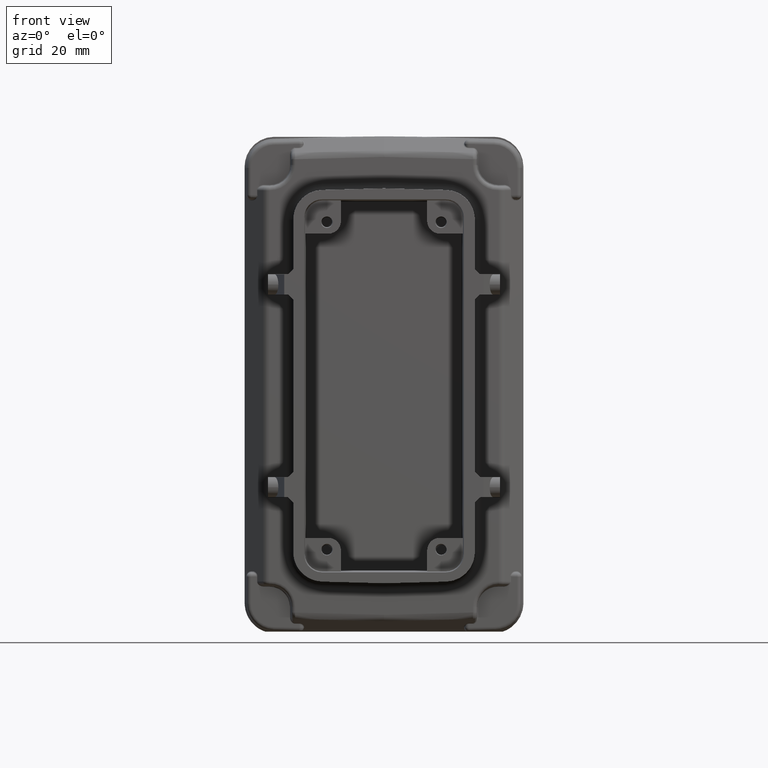
[diagram: clean part render]
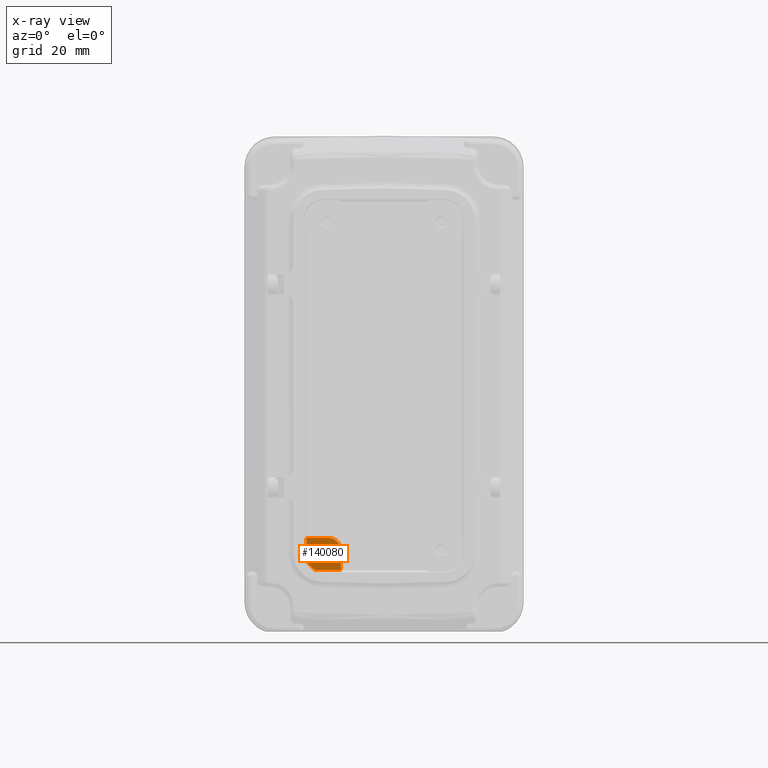
[diagram: x-ray — body ghosted, one internal face saturated and labeled with its STEP entity id]
A machine part, front view, then the same camera in x-ray: the body is ghosted and one INTERNAL B-rep face — a face not visible from any outside direction — is saturated and labeled: STEP entity #140080.
In plain terms, the highlighted planar face has unit normal (0, 1, 0).
Its self-contained STEP definition (entity closure, byte-faithful):
#58070=CARTESIAN_POINT('',(33.4243132424393,44.5366080000222,
-56.2038627075968));
#58080=DIRECTION('',(-0.,-1.,-0.));
#58090=DIRECTION('',(1.,-0.,0.));
#58100=AXIS2_PLACEMENT_3D('',#58070,#58080,#58090);
#58110=CIRCLE('',#58100,2.99999999999999);
#58120=CARTESIAN_POINT('',(36.4243132424393,44.5366080000222,
-56.2038627075968));
#58130=VERTEX_POINT('',#58120);
#58140=CARTESIAN_POINT('',(33.4243132424393,44.5366080000222,
-53.2038627075968));
#58150=VERTEX_POINT('',#58140);
#58160=EDGE_CURVE('',#58130,#58150,#58110,.T.);
#73470=CARTESIAN_POINT('',(0.,44.5366080000222,-60.8221435805747));
#73480=DIRECTION('',(1.,0.,-0.));
#73490=VECTOR('',#73480,1.);
#73500=LINE('',#73470,#73490);
#73510=CARTESIAN_POINT('',(30.6701886749184,44.5366080000222,
-60.8221435805748));
#73520=VERTEX_POINT('',#73510);
#73530=CARTESIAN_POINT('',(36.4243132424393,44.5366080000222,
-60.8221435805748));
#73540=VERTEX_POINT('',#73530);
#73550=EDGE_CURVE('',#73520,#73540,#73500,.T.);
#122320=CARTESIAN_POINT('',(0.,44.5366080000222,-53.2038627075968));
#122330=DIRECTION('',(-1.,-0.,0.));
#122340=VECTOR('',#122330,1.);
#122350=LINE('',#122320,#122340);
#122360=CARTESIAN_POINT('',(28.2554455194673,44.5366080000222,
-53.2038627075968));
#122370=VERTEX_POINT('',#122360);
#122380=EDGE_CURVE('',#58150,#122370,#122350,.T.);
#129440=CARTESIAN_POINT('',(28.5484029886949,44.5366080000222,
-59.1150367993883));
#129450=VERTEX_POINT('',#129440);
#129530=CARTESIAN_POINT('',(29.9629267795106,44.5366080000222,
-60.5292503617614));
#129540=VERTEX_POINT('',#129530);
#129570=CARTESIAN_POINT('',(0.,44.5366080000222,-30.5728949472358));
#129580=DIRECTION('',(-0.707184325538622,-0.,0.707029228329696));
#129590=VECTOR('',#129580,1.);
#129600=LINE('',#129570,#129590);
#129610=EDGE_CURVE('',#129540,#129450,#129600,.T.);
#129970=CARTESIAN_POINT('',(29.9629267795106,44.5366080000222,
-60.5292503617614));
#129980=CARTESIAN_POINT('',(29.9860720665585,44.5366080000222,
-60.5523905726653));
#129990=CARTESIAN_POINT('',(30.0103537562008,44.5366080000222,
-60.5743933867001));
#130000=CARTESIAN_POINT('',(30.0609586982971,44.5366080000222,
-60.615914681086));
#130010=CARTESIAN_POINT('',(30.0872805910077,44.5366080000222,
-60.6354320457814));
#130020=CARTESIAN_POINT('',(30.1417125477514,44.5366080000222,
-60.6717943398963));
#130030=CARTESIAN_POINT('',(30.1698211493177,44.5366080000222,
-60.6886382923523));
#130040=CARTESIAN_POINT('',(30.2275559112133,44.5366080000222,
-60.7194913974368));
#130050=CARTESIAN_POINT('',(30.2571805204373,44.5366080000222,
-60.7334997211733));
#130060=CARTESIAN_POINT('',(30.3176620701527,44.5366080000222,
-60.7585465049602));
#130070=CARTESIAN_POINT('',(30.3485173858506,44.5366080000222,
-60.7695842921538));
#130080=CARTESIAN_POINT('',(30.411163253016,44.5366080000222,
-60.788583540437));
#130090=CARTESIAN_POINT('',(30.4429521216256,44.5366080000222,
-60.7965444911547));
#130100=CARTESIAN_POINT('',(30.5071589922908,44.5366080000222,
-60.8093132307908));
#130110=CARTESIAN_POINT('',(30.539575269623,44.5366080000222,
-60.8141206767194));
#130120=CARTESIAN_POINT('',(30.6047247965373,44.5366080000222,
-60.8205359377718));
#130130=CARTESIAN_POINT('',(30.6374562961124,44.5366080000222,
-60.8221435805748));
#130140=CARTESIAN_POINT('',(30.6701886749184,44.5366080000222,
-60.8221435805748));
#130150=B_SPLINE_CURVE_WITH_KNOTS('',3,(#129970,#129980,#129990,#130000,
#130010,#130020,#130030,#130040,#130050,#130060,#130070,#130080,#130090,
#130100,#130110,#130120,#130130,#130140),.UNSPECIFIED.,.F.,.F.,(4,2,2,2,
2,2,2,2,4),(0.,0.0982260119569791,0.196454088399166,0.294684109504473,
0.392915880727633,0.491149140279328,0.58938356918752,0.687618803554438,
0.785854448538123),.UNSPECIFIED.);
#130160=EDGE_CURVE('',#129540,#73520,#130150,.T.);
#139610=CARTESIAN_POINT('',(36.6285380855136,44.5366080000222,
-53.0134025357723));
#139620=DIRECTION('',(0.,1.,0.));
#139630=DIRECTION('',(1.,-0.,0.));
#139640=AXIS2_PLACEMENT_3D('',#139610,#139620,#139630);
#139650=PLANE('',#139640);
#139660=CARTESIAN_POINT('',(28.2554455194673,44.5366080000222,
-58.4079300182018));
#139670=CARTESIAN_POINT('',(28.2554455194673,44.5366080000222,
-58.4406552184793));
#139680=CARTESIAN_POINT('',(28.2570535149059,44.5366080000222,
-58.4733795390252));
#139690=CARTESIAN_POINT('',(28.2634701832827,44.5366080000222,
-58.5385147780078));
#139700=CARTESIAN_POINT('',(28.2682786837248,44.5366080000222,
-58.5709239454672));
#139710=CARTESIAN_POINT('',(28.2810502244525,44.5366080000222,
-58.6351167349146));
#139720=CARTESIAN_POINT('',(28.2890129214145,44.5366080000222,
-58.6668986312963));
#139730=CARTESIAN_POINT('',(28.3080163375684,44.5366080000222,
-58.7295307595423));
#139740=CARTESIAN_POINT('',(28.3190565459318,44.5366080000222,
-58.7603793078176));
#139750=CARTESIAN_POINT('',(28.3441088242185,44.5366080000222,
-58.8208475932223));
#139760=CARTESIAN_POINT('',(28.3581202207492,44.5366080000222,
-58.8504657050124));
#139770=CARTESIAN_POINT('',(28.3889800940273,44.5366080000222,
-58.9081878049329));
#139780=CARTESIAN_POINT('',(28.4058277413264,44.5366080000222,
-58.9362902416327));
#139790=CARTESIAN_POINT('',(28.4421980121425,44.5366080000222,
-58.9907102606982));
#139800=CARTESIAN_POINT('',(28.4617196581666,44.5366080000222,
-59.0170263804792));
#139810=CARTESIAN_POINT('',(28.5032500609143,44.5366080000222,
-59.0676202241463));
#139820=CARTESIAN_POINT('',(28.5252577015488,44.5366080000222,
-59.0918965883862));
#139830=CARTESIAN_POINT('',(28.5484029886949,44.5366080000222,
-59.1150367993883));
#139840=B_SPLINE_CURVE_WITH_KNOTS('',3,(#139660,#139670,#139680,#139690,
#139700,#139710,#139720,#139730,#139740,#139750,#139760,#139770,#139780,
#139790,#139800,#139810,#139820,#139830),.UNSPECIFIED.,.F.,.F.,(4,2,2,2,
2,2,2,2,4),(0.,0.0982142728111414,0.196428956326126,0.294644445460721,
0.392861104162022,0.491079251419391,0.589299149004822,0.687520991414265,
0.785744898395987),.UNSPECIFIED.);
#139850=CARTESIAN_POINT('',(28.2554455194673,44.5366080000222,
-58.4079300182018));
#139860=VERTEX_POINT('',#139850);
#139870=EDGE_CURVE('',#139860,#129450,#139840,.T.);
#139880=ORIENTED_EDGE('',*,*,#139870,.F.);
#139890=ORIENTED_EDGE('',*,*,#129610,.T.);
#139900=ORIENTED_EDGE('',*,*,#130160,.F.);
#139910=ORIENTED_EDGE('',*,*,#73550,.F.);
#139920=CARTESIAN_POINT('',(36.4243132424393,44.5366080000222,0.));
#139930=DIRECTION('',(-0.,0.,-1.));
#139940=VECTOR('',#139930,1.);
#139950=LINE('',#139920,#139940);
#139960=EDGE_CURVE('',#58130,#73540,#139950,.T.);
#139970=ORIENTED_EDGE('',*,*,#139960,.T.);
#139980=ORIENTED_EDGE('',*,*,#58160,.F.);
#139990=ORIENTED_EDGE('',*,*,#122380,.F.);
#140000=CARTESIAN_POINT('',(28.2554455194673,44.5366080000222,0.));
#140010=DIRECTION('',(-0.,0.,-1.));
#140020=VECTOR('',#140010,1.);
#140030=LINE('',#140000,#140020);
#140040=EDGE_CURVE('',#122370,#139860,#140030,.T.);
#140050=ORIENTED_EDGE('',*,*,#140040,.F.);
#140060=EDGE_LOOP('',(#140050,#139990,#139980,#139970,#139910,#139900,
#139890,#139880));
#140070=FACE_OUTER_BOUND('',#140060,.T.);
#140080=ADVANCED_FACE('',(#140070),#139650,.T.);